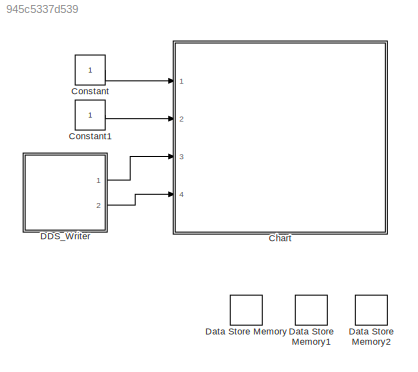
MODEL slx_945c5337d539
KIND model
CONFIG AbsTol = auto
CONFIG EnableMultiTasking = off
CONFIG FixedStep = auto
CONFIG MaxStep = auto
CONFIG MinStep = auto
CONFIG RelTol = 1e-3
CONFIG SampleTimeConstraint = Unconstrained
CONFIG Solver = FixedStepAuto
CONFIG SolverName = FixedStepAuto
CONFIG StartTime = 0.0
CONFIG StopTime = 150
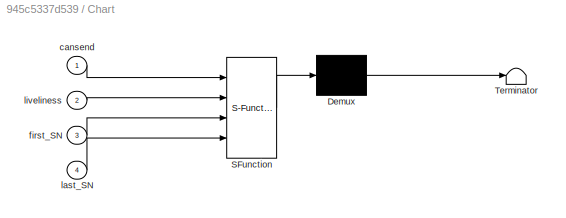
BLOCK [SubSystem] Chart
  ErrorFcn = Stateflow.Translate.translate
  PermitHierarchicalResolution = ExplicitOnly
  Ports = [4]
  RequestExecContextInheritance = off
  SFBlockType = Chart
  TreatAsAtomicUnit = on
BLOCK [Demux] Chart/ Demux 
  Outputs = 1
  Ports = [1, 1]
BLOCK [S-Function] Chart/ SFunction 
  EnableBusSupport = on
  FunctionName = sf_sfun
  PortCounts = [4 1]
  Ports = [4, 1]
  SFcnIsStateOwnerBlock = off
  SFunctionDeploymentMode = off
  Tag = Stateflow S-Function RTPS_2018a 3
BLOCK [Terminator] Chart/ Terminator 
BLOCK [Inport] Chart/cansend
BLOCK [Inport] Chart/first_SN
  Port = 3
BLOCK [Inport] Chart/last_SN
  Port = 4
BLOCK [Inport] Chart/liveliness
  Port = 2
BLOCK [Constant] Constant
BLOCK [Constant] Constant1
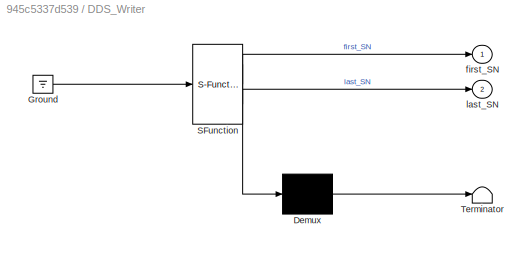
BLOCK [SubSystem] DDS_Writer
  ErrorFcn = Stateflow.Translate.translate
  PermitHierarchicalResolution = ExplicitOnly
  Ports = [0, 2]
  RequestExecContextInheritance = off
  SFBlockType = Chart
  TreatAsAtomicUnit = on
BLOCK [Demux] DDS_Writer/ Demux 
  Outputs = 1
  Ports = [1, 1]
BLOCK [Ground] DDS_Writer/ Ground 
BLOCK [S-Function] DDS_Writer/ SFunction 
  EnableBusSupport = on
  FunctionName = sf_sfun
  PortCounts = [1 3]
  Ports = [1, 3]
  SFcnIsStateOwnerBlock = off
  SFunctionDeploymentMode = off
  Tag = Stateflow S-Function RTPS_2018a 1
BLOCK [Terminator] DDS_Writer/ Terminator 
BLOCK [Outport] DDS_Writer/first_SN
  VectorParamsAs1DForOutWhenUnconnected = off
BLOCK [Outport] DDS_Writer/last_SN
  Port = 2
  VectorParamsAs1DForOutWhenUnconnected = off
BLOCK [DataStoreMemory] Data Store Memory
  DataStoreName = WHC
  InitialValue = [0 0 0 0 0]
  OutDataTypeStr = int32
  ReadBeforeWriteMsg = warning
  ShowAdditionalParam = off
  SignalType = real
  WriteAfterReadMsg = warning
  WriteAfterWriteMsg = warning
BLOCK [DataStoreMemory] Data Store Memory1
  DataStoreName = RHC
  InitialValue = [0 0 0 0 0]
  OutDataTypeStr = int32
  ReadBeforeWriteMsg = warning
  ShowAdditionalParam = off
  SignalType = real
  VectorParams1D = off
  WriteAfterReadMsg = warning
  WriteAfterWriteMsg = warning
BLOCK [DataStoreMemory] Data Store Memory2
  DataStoreName = RHC2
  InitialValue = [0 0 0 0 0]
  OutDataTypeStr = int32
  ReadBeforeWriteMsg = warning
  ShowAdditionalParam = off
  SignalType = real
  VectorParams1D = off
  WriteAfterReadMsg = warning
  WriteAfterWriteMsg = warning
LINE Constant1:1 -> Chart:2
LINE Constant:1 -> Chart:1
LINE DDS_Writer:1 -> Chart:3
LINE DDS_Writer:2 -> Chart:4
CHART DDS_Writer states=2 transitions=2
  STATE_LABEL 'y=random'
  STATE_LABEL 'SCRIPT:\nfunction y=random\n  y=rand();\n'
  STATE_LABEL 'add\n'
CHART Chart states=76 transitions=158
  STATE_LABEL 'select_channel(i)'
  STATE_LABEL '[i==1]'
  STATE_LABEL '{send(TRY,model.channel.channel_1)}'
  STATE_LABEL '[i==2]'
  STATE_LABEL '{send(TRY,model.channel.channel_2)}'
  STATE_LABEL '[i==3]'
  STATE_LABEL '{send(TRY,model.channel.channel_3)}'
  STATE_LABEL '[i==4]'
  STATE_LABEL '{send(TRY,model.channel.channel_4)}'
  STATE_LABEL '{send(TRY,model.channel.channel_5)}'
  STATE_LABEL 'set_acknack(wid,rid,rn,mn)'
  STATE_LABEL '{buffer_acknack(rid,1)=1;\nbuffer_acknack(rid,2)=rid}'
  STATE_LABEL '{buffer_acknack(rid,3)=rn;\nbuffer_acknack(rid,4)=mn}'
  STATE_LABEL 'flag=acked_all'
  STATE_LABEL '{flag=0}'
  STATE_LABEL '{i=1}'
  STATE_LABEL '[i>2]'
  STATE_LABEL '{flag=1}'
  STATE_LABEL '[i<=2&&buffer_acknack(i,3)==5]'
  STATE_LABEL '{i = i + 1}'
  STATE_LABEL 'flag=empty'
  STATE_LABEL '{flag=0}'
  STATE_LABEL '{i=first_SN}'
  STATE_LABEL '[i>last_SN]'
  STATE_LABEL '{flag=1}'
  STATE_LABEL '[i<=last_SN&&unsent(i)==0]'
  STATE_LABEL '{i = i + 1}'
  STATE_LABEL 'y=delay'
  STATE_LABEL 'SCRIPT:\nfunction y=delay\n  y=rand();\n\n'
  STATE_LABEL 'count1 = set_final_Flag(wid,count)'
  STATE_LABEL '{buffer_heartbeat(wid,1)=SET;count1 = count + 1}'
  STATE_LABEL '[count==3]'
  STATE_LABEL '{buffer_heartbeat(wid,1)=NO_SET;count1=0}'
  STATE_LABEL 'set_liveliness_Flag(wid, flag)'
  STATE_LABEL '{buffer_heartbeat(wid,2)=flag;}'
  STATE_LABEL 'set_heartbeatSN(wid)'
  STATE_LABEL '{buffer_heartbeat(wid,3)=first_SN}'
  STATE_LABEL '{buffer_heartbeat(wid,4)=last_SN}'
  STATE_LABEL 'set_message(sn)'
  STATE_LABEL '{buffer_data(WriterId,i,sn)=WHC(sn);i = i + 1}'
